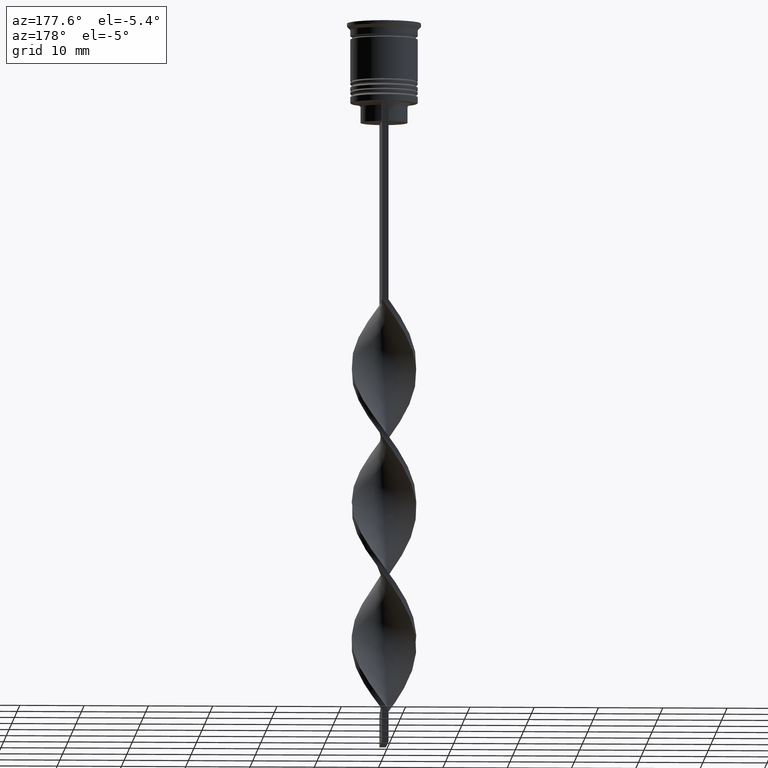
[diagram: clean part render]
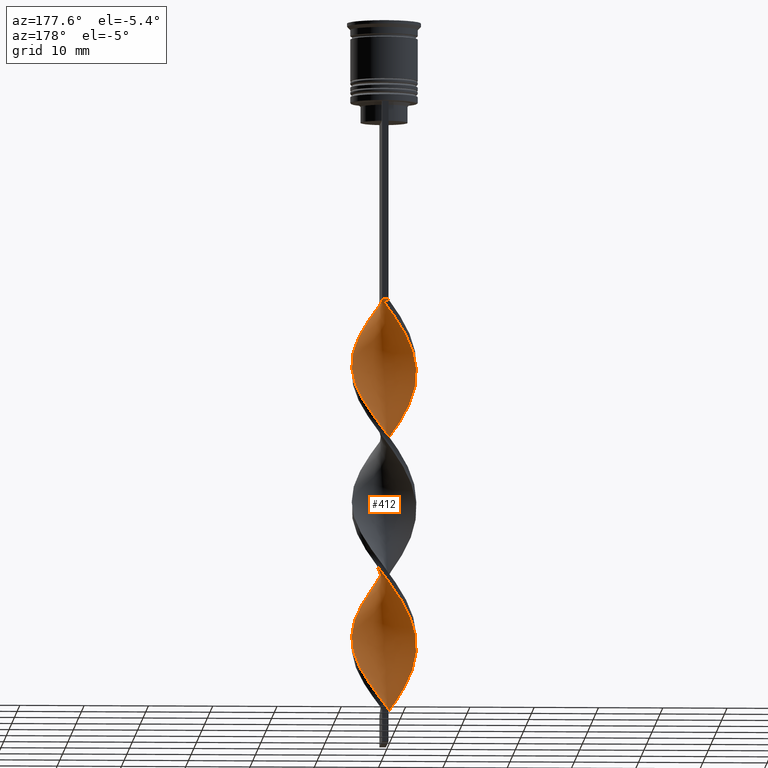
[diagram: same view with one face highlighted and labeled with its STEP entity id]
A machine part, auxiliary view. The second image highlights one B-rep face of the part: STEP entity #412.
In plain terms, the highlighted face is a freeform B-spline surface patch.
Its self-contained STEP definition (entity closure, byte-faithful):
#1 = CARTESIAN_POINT ( 'NONE',  ( 0.7111074127247642984, 4.974366919274038068, -63.19230769230768630 ) ) ;
#6 = CARTESIAN_POINT ( 'NONE',  ( 0.1071099161113016063, -5.060710991611132137, -65.65384615384614619 ) ) ;
#17 = CARTESIAN_POINT ( 'NONE',  ( -2.766343873045448376, -4.194918542244166382, -61.55128205128204399 ) ) ;
#21 = CARTESIAN_POINT ( 'NONE',  ( 4.398951702833859834, -2.428831800708950883, -50.06410256410256210 ) ) ;
#26 = CARTESIAN_POINT ( 'NONE',  ( 4.104038128678487496, 2.962961240565975096, -80.42307692307691980 ) ) ;
#42 = CARTESIAN_POINT ( 'NONE',  ( -4.693865276989236612, -1.894702360851923784, -57.44871794871794890 ) ) ;
#45 = CARTESIAN_POINT ( 'NONE',  ( 4.225728863414809133, 2.786661774892327692, -57.44871794871794890 ) ) ;
#50 = CARTESIAN_POINT ( 'NONE',  ( -0.5000000000000006661, -5.000000000000000888, -64.83333333333332860 ) ) ;
#58 = CARTESIAN_POINT ( 'NONE',  ( -4.225728863414810910, 2.786661774892329024, -50.88461538461537970 ) ) ;
#65 = CARTESIAN_POINT ( 'NONE',  ( -0.1071099161113027859, 5.060710991611132137, -86.98717948717948900 ) ) ;
#72 = CARTESIAN_POINT ( 'NONE',  ( -0.5000000000000002220, -1.666666666666667851, -107.5000000000000000 ) ) ;
#75 = CARTESIAN_POINT ( 'NONE',  ( -0.1071099161113027859, 5.060710991611131249, -44.32051282051282470 ) ) ;
#78 = CARTESIAN_POINT ( 'NONE',  ( -0.4999999999999993339, 4.999999999999999112, -107.5000000000000000 ) ) ;
#80 = LINE ( 'NONE', #3315, #1233 ) ;
#83 = CARTESIAN_POINT ( 'NONE',  ( -2.941357917118425203, 4.074115069975904113, -91.08974358974359120 ) ) ;
#99 = CARTESIAN_POINT ( 'NONE',  ( -4.398951702833861610, -2.428831800708950883, -58.26923076923076650 ) ) ;
#103 = CARTESIAN_POINT ( 'NONE',  ( 4.497778769905805163, 2.240532556555384414, -99.29487179487178139 ) ) ;
#108 = CARTESIAN_POINT ( 'NONE',  ( -5.010902036907448398, 0.7163302668880177082, -73.85897435897436480 ) ) ;
#119 = CARTESIAN_POINT ( 'NONE',  ( 0.1071099161113048537, 5.060710991611129472, -106.6794871794871824 ) ) ;
#124 = CARTESIAN_POINT ( 'NONE',  ( 2.256988544190325907, -4.530813501584092684, -45.96153846153845279 ) ) ;
#137 = CARTESIAN_POINT ( 'NONE',  ( 1.107109916111302717, -4.939289008388868751, -86.98717948717948900 ) ) ;
#142 = CARTESIAN_POINT ( 'NONE',  ( 0.1071099161113048398, 5.060710991611130360, -64.01282051282051100 ) ) ;
#156 = CARTESIAN_POINT ( 'NONE',  ( 3.830886956102703245, 3.251815666602606569, -100.9358974358974308 ) ) ;
#160 = CARTESIAN_POINT ( 'NONE',  ( -1.880887847392241019, -4.659641714287931613, -82.88461538461537259 ) ) ;
#175 = CARTESIAN_POINT ( 'NONE',  ( -3.275699201900569069, -3.859023582904238303, -103.3974358974358694 ) ) ;
#193 = CARTESIAN_POINT ( 'NONE',  ( 3.275699201900567736, -3.859023582904237415, -90.26923076923075939 ) ) ;
#273 = CARTESIAN_POINT ( 'NONE',  ( -4.852383656948341617, 1.305516313869971912, -73.03846153846153300 ) ) ;
#278 = CARTESIAN_POINT ( 'NONE',  ( -5.036723384328414710, 0.5036723384328417596, -96.83333333333332860 ) ) ;
#283 = CARTESIAN_POINT ( 'NONE',  ( 0.5000000000000000000, 5.000000000000000888, -43.50000000000000000 ) ) ;
#289 = CARTESIAN_POINT ( 'NONE',  ( -4.852383656948343393, -1.305516313869969913, -56.62820512820513130 ) ) ;
#295 = CARTESIAN_POINT ( 'NONE',  ( -1.682049230150816532, -4.735051254986481162, -63.19230769230768630 ) ) ;
#304 = CARTESIAN_POINT ( 'NONE',  ( 0.5000000000000000000, 5.000000000000000888, -43.50000000000000000 ) ) ;
#307 = CARTESIAN_POINT ( 'NONE',  ( 5.036723384328413822, 0.5036723384328410935, -54.16666666666666430 ) ) ;
#309 = ORIENTED_EDGE ( 'NONE', *, *, #2556, .F. ) ;
#313 = CARTESIAN_POINT ( 'NONE',  ( 2.446670785446252161, -4.431260581638921892, -68.93589743589743080 ) ) ;
#318 = CARTESIAN_POINT ( 'NONE',  ( 2.446670785446252605, 4.431260581638919227, -103.3974358974358694 ) ) ;
#328 = CARTESIAN_POINT ( 'NONE',  ( -4.903276030362609283, 1.099037838325643168, -53.34615384615383959 ) ) ;
#331 = CARTESIAN_POINT ( 'NONE',  ( 1.880887847392238132, 4.659641714287932501, -61.55128205128204399 ) ) ;
#335 = CARTESIAN_POINT ( 'NONE',  ( -2.446670785446253049, 4.431260581638921003, -47.60256410256408799 ) ) ;
#344 = CARTESIAN_POINT ( 'NONE',  ( 3.689868665289528504, 3.410992411735106700, -81.24358974358973740 ) ) ;
#351 = CARTESIAN_POINT ( 'NONE',  ( 4.769828676396805633, -1.694403338218443800, -73.85897435897436480 ) ) ;
#363 = CARTESIAN_POINT ( 'NONE',  ( -4.769828676396803857, 1.694403338218444022, -52.52564102564102910 ) ) ;
#370 = CARTESIAN_POINT ( 'NONE',  ( -0.4999999999999993339, 4.999999999999999112, -107.5000000000000000 ) ) ;
#371 = CARTESIAN_POINT ( 'NONE',  ( -4.852383656948343393, -1.305516313869969913, -99.29487179487178139 ) ) ;
#385 = CARTESIAN_POINT ( 'NONE',  ( -4.769828676396803857, 1.694403338218444022, -95.19230769230769340 ) ) ;
#389 = CARTESIAN_POINT ( 'NONE',  ( 4.225728863414809133, 2.786661774892327692, -100.1153846153846132 ) ) ;
#394 = CARTESIAN_POINT ( 'NONE',  ( 4.852383656948341617, -1.305516313869971246, -51.70512820512820440 ) ) ;
#405 = CARTESIAN_POINT ( 'NONE',  ( -5.036723384328413822, -0.5036723384328405384, -75.50000000000000000 ) ) ;
#410 = CARTESIAN_POINT ( 'NONE',  ( -4.398951702833861610, -2.428831800708950883, -100.9358974358974308 ) ) ;
#412 = ADVANCED_FACE ( 'NONE', ( #2166 ), #1568, .T. ) ;
#421 = CARTESIAN_POINT ( 'NONE',  ( 4.903276030362607507, 1.099037838325641392, -97.65384615384614619 ) ) ;
#425 = CARTESIAN_POINT ( 'NONE',  ( -4.104038128678483055, 2.962961240565979093, -70.57692307692306599 ) ) ;
#443 = CARTESIAN_POINT ( 'NONE',  ( -2.256988544190328572, -4.530813501584093572, -105.0384615384615330 ) ) ;
#458 = VERTEX_POINT ( 'NONE', #283 ) ;
#459 = CARTESIAN_POINT ( 'NONE',  ( 2.256988544190325907, -4.530813501584092684, -88.62820512820513841 ) ) ;
#515 = ORIENTED_EDGE ( 'NONE', *, *, #1076, .T. ) ;
#541 = CARTESIAN_POINT ( 'NONE',  ( -4.398951702833859834, 2.428831800708950883, -71.39743589743588359 ) ) ;
#547 = CARTESIAN_POINT ( 'NONE',  ( 2.256988544190329016, 4.530813501584093572, -83.70512820512820440 ) ) ;
#552 = CARTESIAN_POINT ( 'NONE',  ( 2.941357917118426091, 4.074115069975901449, -102.5769230769230660 ) ) ;
#557 = CARTESIAN_POINT ( 'NONE',  ( -1.682049230150816532, -4.735051254986481162, -63.19230769230768630 ) ) ;
#564 = CARTESIAN_POINT ( 'NONE',  ( -1.315104909338222772, 4.888022846936949328, -45.96153846153845279 ) ) ;
#573 = CARTESIAN_POINT ( 'NONE',  ( -3.436045048790599132, 3.716969558312887667, -91.91025641025643722 ) ) ;
#576 = CARTESIAN_POINT ( 'NONE',  ( 1.107109916111302717, -4.939289008388868751, -44.32051282051282470 ) ) ;
#580 = CARTESIAN_POINT ( 'NONE',  ( -3.830886956102704133, 3.251815666602608346, -50.06410256410256210 ) ) ;
#584 = CARTESIAN_POINT ( 'NONE',  ( 5.023812710617931110, -0.1063289642275889874, -96.01282051282051100 ) ) ;
#592 = CARTESIAN_POINT ( 'NONE',  ( -2.256988544190328572, -4.530813501584093572, -62.37179487179486870 ) ) ;
#601 = CARTESIAN_POINT ( 'NONE',  ( -4.104038128678486608, -2.962961240565977317, -59.08974358974359120 ) ) ;
#616 = CARTESIAN_POINT ( 'NONE',  ( -1.315104909338222772, 4.888022846936949328, -45.96153846153845990 ) ) ;
#620 = CARTESIAN_POINT ( 'NONE',  ( 3.689868665289525396, -3.410992411735107588, -48.42307692307691269 ) ) ;
#624 = CARTESIAN_POINT ( 'NONE',  ( -5.036723384328414710, 0.5036723384328417596, -54.16666666666665719 ) ) ;
#628 = CARTESIAN_POINT ( 'NONE',  ( 0.7111074127247642984, 4.974366919274038068, -105.8589743589743506 ) ) ;
#630 = CARTESIAN_POINT ( 'NONE',  ( -0.4999999999999993339, 4.999999999999999112, -107.5000000000000000 ) ) ;
#632 = CARTESIAN_POINT ( 'NONE',  ( 2.446670785446252161, -4.431260581638921003, -68.93589743589743080 ) ) ;
#639 = CARTESIAN_POINT ( 'NONE',  ( 1.682049230150814534, -4.735051254986480274, -45.14102564102563520 ) ) ;
#658 = EDGE_CURVE ( 'NONE', #2536, #3394, #1551, .T. ) ;
#659 = CARTESIAN_POINT ( 'NONE',  ( 4.769828676396803857, 1.694403338218442912, -55.80769230769230660 ) ) ;
#677 = CARTESIAN_POINT ( 'NONE',  ( 5.036723384328413822, 0.5036723384328410935, -96.83333333333332860 ) ) ;
#681 = CARTESIAN_POINT ( 'NONE',  ( -4.104038128678486608, -2.962961240565977317, -101.7564102564102484 ) ) ;
#691 = CARTESIAN_POINT ( 'NONE',  ( -4.769828676396803857, -1.694403338218441135, -77.14102564102563520 ) ) ;
#694 = CARTESIAN_POINT ( 'NONE',  ( 4.104038128678483943, -2.962961240565977761, -49.24358974358973740 ) ) ;
#707 = CARTESIAN_POINT ( 'NONE',  ( 1.880887847392238132, 4.659641714287932501, -61.55128205128204399 ) ) ;
#728 = CARTESIAN_POINT ( 'NONE',  ( 4.398951702833859834, -2.428831800708950883, -92.73076923076922640 ) ) ;
#786 = CARTESIAN_POINT ( 'NONE',  ( 0.5000000000000000000, 5.000000000000000888, -43.50000000000000000 ) ) ;
#810 = CARTESIAN_POINT ( 'NONE',  ( 0.5000000000000000000, -4.999999999999999112, -43.50000000000000000 ) ) ;
#827 = CARTESIAN_POINT ( 'NONE',  ( -5.010902036907449286, -0.7163302668880179302, -55.80769230769230660 ) ) ;
#838 = CARTESIAN_POINT ( 'NONE',  ( -4.769828676396804745, 1.694403338218444244, -52.52564102564103621 ) ) ;
#850 = CARTESIAN_POINT ( 'NONE',  ( -0.7111074127247628551, 4.974366919274039844, -45.14102564102563520 ) ) ;
#853 = CARTESIAN_POINT ( 'NONE',  ( 5.010902036907448398, -0.7163302668880181523, -52.52564102564102910 ) ) ;
#856 = CARTESIAN_POINT ( 'NONE',  ( -4.903276030362609283, 1.099037838325643168, -53.34615384615383959 ) ) ;
#867 = CARTESIAN_POINT ( 'NONE',  ( 0.1071099161113016063, -5.060710991611131249, -65.65384615384614619 ) ) ;
#870 = CARTESIAN_POINT ( 'NONE',  ( 2.941357917118426091, 4.074115069975901449, -59.91025641025640880 ) ) ;
#874 = CARTESIAN_POINT ( 'NONE',  ( 5.023812710617932886, 0.1063289642275847546, -76.32051282051281760 ) ) ;
#878 = CARTESIAN_POINT ( 'NONE',  ( 3.436045048790599132, 3.716969558312884558, -101.7564102564102484 ) ) ;
#884 = CARTESIAN_POINT ( 'NONE',  ( 4.398951702833861610, 2.428831800708950439, -79.60256410256410220 ) ) ;
#894 = CARTESIAN_POINT ( 'NONE',  ( 1.107109916111305381, 4.939289008388870528, -85.34615384615383959 ) ) ;
#907 = CARTESIAN_POINT ( 'NONE',  ( 1.682049230150819419, 4.735051254986480274, -84.52564102564103621 ) ) ;
#914 = CARTESIAN_POINT ( 'NONE',  ( -4.497778769905806939, 2.240532556555386634, -94.37179487179486159 ) ) ;
#927 = CARTESIAN_POINT ( 'NONE',  ( -5.036723384328415598, 0.5036723384328417596, -96.83333333333332860 ) ) ;
#930 = CARTESIAN_POINT ( 'NONE',  ( 2.446670785446252605, 4.431260581638918339, -103.3974358974358836 ) ) ;
#936 = CARTESIAN_POINT ( 'NONE',  ( -2.256988544190325019, 4.530813501584093572, -67.29487179487178139 ) ) ;
#947 = CARTESIAN_POINT ( 'NONE',  ( 1.682049230150814534, -4.735051254986480274, -87.80769230769230660 ) ) ;
#951 = CARTESIAN_POINT ( 'NONE',  ( -1.107109916111304937, -4.939289008388870528, -106.6794871794871682 ) ) ;
#963 = CARTESIAN_POINT ( 'NONE',  ( 2.941357917118426091, 4.074115069975901449, -102.5769230769230660 ) ) ;
#966 = CARTESIAN_POINT ( 'NONE',  ( -4.497778769905805163, -2.240532556555384858, -77.96153846153845279 ) ) ;
#979 = CARTESIAN_POINT ( 'NONE',  ( 4.497778769905805163, 2.240532556555384414, -56.62820512820513130 ) ) ;
#992 = CARTESIAN_POINT ( 'NONE',  ( 4.852383656948341617, -1.305516313869971246, -94.37179487179486159 ) ) ;
#1075 = CARTESIAN_POINT ( 'NONE',  ( 5.023812710617931110, -0.1063289642275889874, -53.34615384615383959 ) ) ;
#1076 = EDGE_CURVE ( 'NONE', #3278, #3394, #1315, .T. ) ;
#1090 = CARTESIAN_POINT ( 'NONE',  ( 0.1071099161113048537, 5.060710991611129472, -64.01282051282051100 ) ) ;
#1095 = CARTESIAN_POINT ( 'NONE',  ( 5.010902036907451063, 0.7163302668880160429, -77.14102564102563520 ) ) ;
#1103 = CARTESIAN_POINT ( 'NONE',  ( 5.023812710617932886, 0.1063289642275847546, -76.32051282051281760 ) ) ;
#1107 = CARTESIAN_POINT ( 'NONE',  ( 4.693865276989234836, -1.894702360851923340, -50.88461538461537970 ) ) ;
#1113 = CARTESIAN_POINT ( 'NONE',  ( 5.036723384328414710, -0.5036723384328424258, -75.49999999999998579 ) ) ;
#1119 = CARTESIAN_POINT ( 'NONE',  ( 4.497778769905805163, 2.240532556555384414, -99.29487179487178139 ) ) ;
#1126 = CARTESIAN_POINT ( 'NONE',  ( -1.107109916111305159, -4.939289008388870528, -64.01282051282051100 ) ) ;
#1133 = CARTESIAN_POINT ( 'NONE',  ( 4.497778769905806939, -2.240532556555387078, -73.03846153846153300 ) ) ;
#1142 = CARTESIAN_POINT ( 'NONE',  ( 4.903276030362609283, -1.099037838325644945, -74.67948717948718240 ) ) ;
#1145 = CARTESIAN_POINT ( 'NONE',  ( 2.256988544190326351, -4.530813501584092684, -45.96153846153845990 ) ) ;
#1149 = CARTESIAN_POINT ( 'NONE',  ( -0.7111074127247628551, 4.974366919274039844, -87.80769230769230660 ) ) ;
#1159 = CARTESIAN_POINT ( 'NONE',  ( -3.689868665289528060, -3.410992411735107144, -59.91025641025640880 ) ) ;
#1162 = CARTESIAN_POINT ( 'NONE',  ( -4.903276030362609283, -1.099037838325638727, -76.32051282051281760 ) ) ;
#1168 = CARTESIAN_POINT ( 'NONE',  ( -3.830886956102704133, 3.251815666602608346, -92.73076923076922640 ) ) ;
#1184 = CARTESIAN_POINT ( 'NONE',  ( 4.104038128678484831, -2.962961240565978205, -91.91025641025643722 ) ) ;
#1188 = CARTESIAN_POINT ( 'NONE',  ( -5.023812710617931110, 0.1063289642275907221, -74.67948717948718240 ) ) ;
#1197 = CARTESIAN_POINT ( 'NONE',  ( -5.010902036907449286, -0.7163302668880179302, -98.47435897435896379 ) ) ;
#1207 = CARTESIAN_POINT ( 'NONE',  ( 4.903276030362607507, 1.099037838325641392, -54.98717948717948190 ) ) ;
#1217 = CARTESIAN_POINT ( 'NONE',  ( -2.941357917118426535, -4.074115069975901449, -81.24358974358973740 ) ) ;
#1221 = CARTESIAN_POINT ( 'NONE',  ( -3.436045048790600909, -3.716969558312882782, -80.42307692307691980 ) ) ;
#1233 = VECTOR ( 'NONE', #2793, 1000.000000000000000 ) ;
#1239 = CARTESIAN_POINT ( 'NONE',  ( 0.5000000000000000000, -4.999999999999999112, -86.16666666666667140 ) ) ;
#1242 = CARTESIAN_POINT ( 'NONE',  ( -1.315104909338224770, -4.888022846936946664, -83.70512820512820440 ) ) ;
#1251 = CARTESIAN_POINT ( 'NONE',  ( -2.766343873045448376, -4.194918542244166382, -104.2179487179487012 ) ) ;
#1256 = CARTESIAN_POINT ( 'NONE',  ( 4.225728863414809133, 2.786661774892327248, -57.44871794871794890 ) ) ;
#1271 = CARTESIAN_POINT ( 'NONE',  ( 4.693865276989234836, -1.894702360851923117, -93.55128205128204399 ) ) ;
#1299 = CARTESIAN_POINT ( 'NONE',  ( -0.1071099161113027859, 5.060710991611132137, -44.32051282051282470 ) ) ;
#1315 =( BOUNDED_CURVE ( )  B_SPLINE_CURVE ( 2, ( #810, #576, #3280, #1145, #1431, #1370, #620, #1947, #21, #1107, #2458, #853, #1075, #307, #1645, #2440, #1392, #45, #2774, #3296, #870, #3032, #331, #1700, #1, #1090, #1413, #2500, #2236, #2517, #2161, #3242, #1890, #2977, #541, #2720, #273, #1354, #3351, #405, #1162, #691, #2257, #3334, #3127, #2580, #1217, #1987, #2311, #2278, #1776, #2876, #1239, #137, #947, #2562, #1489, #2331, #1449, #1184, #2061, #2540, #3142, #3391, #2860, #677, #421, #1506, #103, #389, #156, #3408, #963, #930, #2004, #3111, #2047, #119, #78 ),
 .UNSPECIFIED., .F., .T. ) 
 B_SPLINE_CURVE_WITH_KNOTS ( ( 3, 2, 2, 2, 2, 2, 2, 2, 2, 2, 2, 2, 2, 2, 2, 2, 2, 2, 2, 2, 2, 2, 2, 2, 2, 2, 2, 2, 2, 2, 2, 2, 2, 2, 2, 2, 2, 2, 2, 3 ),
 ( 0.000000000000000000, 0.01923076923076923184, 0.03846153846153846367, 0.05769230769230768857, 0.07692307692307692735, 0.09615384615384615918, 0.1153846153846153771, 0.1346153846153846090, 0.1538461538461538547, 0.1730769230769230449, 0.1923076923076923184, 0.2115384615384615363, 0.2307692307692307543, 0.2500000000000000000, 0.2692307692307692180, 0.2884615384615384359, 0.3076923076923077094, 0.3269230769230769273, 0.3461538461538460898, 0.3653846153846153633, 0.3846153846153846367, 0.4038461538461539102, 0.4230769230769230727, 0.4423076923076922906, 0.4615384615384615086, 0.4807692307692307820, 0.5000000000000000000, 0.5192307692307692735, 0.5384615384615384359, 0.5576923076923077094, 0.5769230769230768718, 0.5961538461538461453, 0.6153846153846154188, 0.6346153846153845812, 0.6538461538461538547, 0.6730769230769230171, 0.6923076923076921796, 0.7115384615384615641, 0.7307692307692307265, 0.7500000000000000000 ),
 .UNSPECIFIED. ) 
 CURVE ( )  GEOMETRIC_REPRESENTATION_ITEM ( )  RATIONAL_B_SPLINE_CURVE ( ( 1.000000000000000000, 0.9927088740980539727, 1.000000000000000000, 0.9927088740980539727, 1.000000000000000000, 0.9927088740980539727, 1.000000000000000000, 0.9927088740980539727, 1.000000000000000000, 0.9927088740980539727, 1.000000000000000000, 0.9927088740980539727, 1.000000000000000000, 0.9927088740980539727, 1.000000000000000000, 0.9927088740980539727, 1.000000000000000000, 0.9927088740980539727, 1.000000000000000000, 0.9927088740980539727, 1.000000000000000000, 0.9927088740980539727, 1.000000000000000000, 0.9927088740980539727, 1.000000000000000000, 0.9927088740980539727, 1.000000000000000000, 0.9927088740980539727, 1.000000000000000000, 0.9927088740980539727, 1.000000000000000000, 0.9927088740980539727, 1.000000000000000000, 0.9927088740980539727, 1.000000000000000000, 0.9927088740980539727, 1.000000000000000000, 0.9927088740980539727, 1.000000000000000000, 0.9927088740980539727, 1.000000000000000000, 0.9927088740980539727, 1.000000000000000000, 0.9927088740980539727, 1.000000000000000000, 0.9927088740980539727, 1.000000000000000000, 0.9927088740980539727, 1.000000000000000000, 0.9927088740980539727, 1.000000000000000000, 0.9927088740980539727, 1.000000000000000000, 0.9927088740980539727, 1.000000000000000000, 0.9927088740980539727, 1.000000000000000000, 0.9927088740980539727, 1.000000000000000000, 0.9927088740980539727, 1.000000000000000000, 0.9927088740980539727, 1.000000000000000000, 0.9927088740980539727, 1.000000000000000000, 0.9927088740980539727, 1.000000000000000000, 0.9927088740980539727, 1.000000000000000000, 0.9927088740980539727, 1.000000000000000000, 0.9927088740980539727, 1.000000000000000000, 0.9927088740980539727, 1.000000000000000000, 0.9927088740980539727, 1.000000000000000000, 0.9927088740980539727, 1.000000000000000000 ) ) 
 REPRESENTATION_ITEM ( '' )  );
#1354 = CARTESIAN_POINT ( 'NONE',  ( -5.010902036907447510, 0.7163302668880177082, -73.85897435897436480 ) ) ;
#1358 = CARTESIAN_POINT ( 'NONE',  ( -2.941357917118425203, 4.074115069975904113, -48.42307692307691269 ) ) ;
#1362 = CARTESIAN_POINT ( 'NONE',  ( 4.225728863414809133, 2.786661774892327248, -100.1153846153846274 ) ) ;
#1366 = CARTESIAN_POINT ( 'NONE',  ( -2.446670785446253049, 4.431260581638920115, -90.26923076923077360 ) ) ;
#1370 = CARTESIAN_POINT ( 'NONE',  ( 3.275699201900567292, -3.859023582904237415, -47.60256410256409509 ) ) ;
#1375 = CARTESIAN_POINT ( 'NONE',  ( 0.7111074127247614118, -4.974366919274040733, -66.47435897435896379 ) ) ;
#1380 = CARTESIAN_POINT ( 'NONE',  ( 4.769828676396803857, 1.694403338218442912, -98.47435897435896379 ) ) ;
#1387 = CARTESIAN_POINT ( 'NONE',  ( -4.497778769905806939, 2.240532556555386634, -51.70512820512820440 ) ) ;
#1392 = CARTESIAN_POINT ( 'NONE',  ( 4.497778769905805163, 2.240532556555384414, -56.62820512820513130 ) ) ;
#1399 = CARTESIAN_POINT ( 'NONE',  ( -2.766343873045448376, -4.194918542244166382, -61.55128205128204399 ) ) ;
#1410 = CARTESIAN_POINT ( 'NONE',  ( -4.104038128678487496, -2.962961240565977761, -59.08974358974358410 ) ) ;
#1413 = CARTESIAN_POINT ( 'NONE',  ( -0.4999999999999993339, 4.999999999999999112, -64.83333333333332860 ) ) ;
#1418 = CARTESIAN_POINT ( 'NONE',  ( 4.225728863414809133, -2.786661774892330801, -72.21794871794871540 ) ) ;
#1427 =( BOUNDED_CURVE ( )  B_SPLINE_CURVE ( 2, ( #304, #75, #850, #616, #1428, #3310, #2476, #2997, #2788, #58, #1387, #363, #328, #1962, #1446, #827, #289, #42, #99, #1410, #1159, #2197, #17, #592, #557, #1126, #1679, #867, #2252, #2535, #2216, #632, #3051, #3293, #1944, #2769, #2497, #2175, #1142, #3012, #1103, #1697, #2233, #3254, #884, #1908, #344, #3331, #1928, #2514, #907, #1983, #3068, #1642, #1715, #2805, #2732, #1366, #3277, #573, #1660, #2874, #3106, #385, #2559, #927, #2275, #1197, #1469, #2045, #3087, #1487, #3125, #3386, #1251, #2895, #2578, #3153, #2059 ),
 .UNSPECIFIED., .F., .T. ) 
 B_SPLINE_CURVE_WITH_KNOTS ( ( 3, 2, 2, 2, 2, 2, 2, 2, 2, 2, 2, 2, 2, 2, 2, 2, 2, 2, 2, 2, 2, 2, 2, 2, 2, 2, 2, 2, 2, 2, 2, 2, 2, 2, 2, 2, 2, 2, 2, 3 ),
 ( 0.000000000000000000, 0.01923076923076923184, 0.03846153846153846367, 0.05769230769230768857, 0.07692307692307692735, 0.09615384615384615918, 0.1153846153846153771, 0.1346153846153846090, 0.1538461538461538547, 0.1730769230769230449, 0.1923076923076923184, 0.2115384615384615363, 0.2307692307692307543, 0.2500000000000000000, 0.2692307692307692180, 0.2884615384615384359, 0.3076923076923077094, 0.3269230769230769273, 0.3461538461538460898, 0.3653846153846153633, 0.3846153846153846367, 0.4038461538461539102, 0.4230769230769230727, 0.4423076923076922906, 0.4615384615384615086, 0.4807692307692307820, 0.5000000000000000000, 0.5192307692307692735, 0.5384615384615384359, 0.5576923076923077094, 0.5769230769230768718, 0.5961538461538461453, 0.6153846153846154188, 0.6346153846153845812, 0.6538461538461538547, 0.6730769230769230171, 0.6923076923076921796, 0.7115384615384615641, 0.7307692307692307265, 0.7500000000000000000 ),
 .UNSPECIFIED. ) 
 CURVE ( )  GEOMETRIC_REPRESENTATION_ITEM ( )  RATIONAL_B_SPLINE_CURVE ( ( 1.000000000000000000, 0.9927088740980539727, 1.000000000000000000, 0.9927088740980539727, 1.000000000000000000, 0.9927088740980539727, 1.000000000000000000, 0.9927088740980539727, 1.000000000000000000, 0.9927088740980539727, 1.000000000000000000, 0.9927088740980539727, 1.000000000000000000, 0.9927088740980539727, 1.000000000000000000, 0.9927088740980539727, 1.000000000000000000, 0.9927088740980539727, 1.000000000000000000, 0.9927088740980539727, 1.000000000000000000, 0.9927088740980539727, 1.000000000000000000, 0.9927088740980539727, 1.000000000000000000, 0.9927088740980539727, 1.000000000000000000, 0.9927088740980539727, 1.000000000000000000, 0.9927088740980539727, 1.000000000000000000, 0.9927088740980539727, 1.000000000000000000, 0.9927088740980539727, 1.000000000000000000, 0.9927088740980539727, 1.000000000000000000, 0.9927088740980539727, 1.000000000000000000, 0.9927088740980539727, 1.000000000000000000, 0.9927088740980539727, 1.000000000000000000, 0.9927088740980539727, 1.000000000000000000, 0.9927088740980539727, 1.000000000000000000, 0.9927088740980539727, 1.000000000000000000, 0.9927088740980539727, 1.000000000000000000, 0.9927088740980539727, 1.000000000000000000, 0.9927088740980539727, 1.000000000000000000, 0.9927088740980539727, 1.000000000000000000, 0.9927088740980539727, 1.000000000000000000, 0.9927088740980539727, 1.000000000000000000, 0.9927088740980539727, 1.000000000000000000, 0.9927088740980539727, 1.000000000000000000, 0.9927088740980539727, 1.000000000000000000, 0.9927088740980539727, 1.000000000000000000, 0.9927088740980539727, 1.000000000000000000, 0.9927088740980539727, 1.000000000000000000, 0.9927088740980539727, 1.000000000000000000, 0.9927088740980539727, 1.000000000000000000, 0.9927088740980539727, 1.000000000000000000 ) ) 
 REPRESENTATION_ITEM ( '' )  );
#1428 = CARTESIAN_POINT ( 'NONE',  ( -1.880887847392238132, 4.659641714287934278, -46.78205128205127750 ) ) ;
#1431 = CARTESIAN_POINT ( 'NONE',  ( 2.766343873045447044, -4.194918542244165494, -46.78205128205127750 ) ) ;
#1435 = CARTESIAN_POINT ( 'NONE',  ( 4.903276030362609283, -1.099037838325644945, -74.67948717948718240 ) ) ;
#1446 = CARTESIAN_POINT ( 'NONE',  ( -5.023812710617932886, -0.1063289642275874608, -54.98717948717948190 ) ) ;
#1449 = CARTESIAN_POINT ( 'NONE',  ( 3.689868665289525396, -3.410992411735107588, -91.08974358974359120 ) ) ;
#1457 = CARTESIAN_POINT ( 'NONE',  ( 5.023812710617931110, -0.1063289642275889874, -53.34615384615383959 ) ) ;
#1469 = CARTESIAN_POINT ( 'NONE',  ( -4.852383656948343393, -1.305516313869969913, -99.29487179487178139 ) ) ;
#1479 = CARTESIAN_POINT ( 'NONE',  ( -5.036723384328412934, -0.5036723384328404274, -75.49999999999998579 ) ) ;
#1487 = CARTESIAN_POINT ( 'NONE',  ( -4.104038128678487496, -2.962961240565977761, -101.7564102564102484 ) ) ;
#1489 = CARTESIAN_POINT ( 'NONE',  ( 2.766343873045447044, -4.194918542244165494, -89.44871794871794179 ) ) ;
#1493 = CARTESIAN_POINT ( 'NONE',  ( 3.275699201900567736, -3.859023582904237415, -47.60256410256408799 ) ) ;
#1506 = CARTESIAN_POINT ( 'NONE',  ( 4.769828676396803857, 1.694403338218442689, -98.47435897435896379 ) ) ;
#1510 = CARTESIAN_POINT ( 'NONE',  ( 3.830886956102703245, 3.251815666602606569, -58.26923076923076650 ) ) ;
#1527 = CARTESIAN_POINT ( 'NONE',  ( -4.225728863414810910, -2.786661774892325028, -78.78205128205127039 ) ) ;
#1542 = CARTESIAN_POINT ( 'NONE',  ( 4.104038128678483943, -2.962961240565977761, -91.91025641025643722 ) ) ;
#1551 = B_SPLINE_CURVE_WITH_KNOTS ( 'NONE', 3,
 ( #1695, #72, #2468, #630 ),
 .UNSPECIFIED., .F., .F.,
 ( 4, 4 ),
 ( 0.000000000000000000, 1.000000000000000000 ),
 .UNSPECIFIED. ) ;
#1568 =( BOUNDED_SURFACE ( )  B_SPLINE_SURFACE ( 1, 2, ( 
 ( #786, #1299, #1935, #564, #3020, #335, #1358, #3284, #580, #3262, #3060, #838, #856, #624, #2796, #2183, #3037, #1650, #1951, #601, #1668, #2984, #1399, #2739, #295, #1688, #50, #6, #1375, #2754, #2446, #313, #2462, #2779, #1917, #1418, #1133, #351, #1435, #1113, #874, #1095, #1972, #3004, #2240, #26, #3300, #2222, #2207, #547, #2485, #894, #2504, #65, #1149, #3318, #1705, #3338, #83, #2522, #1168, #2263, #914, #2724, #1632, #278, #2282, #2851, #371, #2300, #410, #681, #2064, #175, #3372, #443, #2863, #951, #2033 ),
 ( #1792, #2334, #639, #124, #1779, #1493, #2348, #694, #1991, #2585, #394, #2009, #1457, #3355, #1207, #659, #979, #1256, #1510, #2619, #1764, #3144, #707, #3116, #2316, #142, #1743, #3395, #3077, #936, #2813, #2546, #2835, #425, #1722, #3094, #2883, #108, #1188, #1479, #2602, #2567, #966, #1527, #3423, #1221, #2050, #3131, #160, #1242, #3411, #1810, #2635, #2077, #2900, #459, #3162, #193, #2362, #1542, #728, #1271, #992, #2188, #584, #2760, #2509, #1380, #1119, #1362, #3064, #878, #552, #318, #3024, #2244, #628, #2269, #2800 ) ),
 .UNSPECIFIED., .F., .F., .F. ) 
 B_SPLINE_SURFACE_WITH_KNOTS ( ( 2, 2 ),
 ( 3, 2, 2, 2, 2, 2, 2, 2, 2, 2, 2, 2, 2, 2, 2, 2, 2, 2, 2, 2, 2, 2, 2, 2, 2, 2, 2, 2, 2, 2, 2, 2, 2, 2, 2, 2, 2, 2, 2, 3 ),
 ( 0.000000000000000000, 1.000000000000000000 ),
 ( 0.000000000000000000, 0.01923076923076923184, 0.03846153846153846367, 0.05769230769230769551, 0.07692307692307692735, 0.09615384615384615918, 0.1153846153846153910, 0.1346153846153846090, 0.1538461538461538547, 0.1730769230769230727, 0.1923076923076923184, 0.2115384615384615363, 0.2307692307692307820, 0.2500000000000000000, 0.2692307692307692180, 0.2884615384615384359, 0.3076923076923077094, 0.3269230769230769273, 0.3461538461538461453, 0.3653846153846153633, 0.3846153846153846367, 0.4038461538461538547, 0.4230769230769230727, 0.4423076923076922906, 0.4615384615384615641, 0.4807692307692307820, 0.5000000000000000000, 0.5192307692307692735, 0.5384615384615384359, 0.5576923076923077094, 0.5769230769230768718, 0.5961538461538461453, 0.6153846153846154188, 0.6346153846153845812, 0.6538461538461538547, 0.6730769230769231282, 0.6923076923076922906, 0.7115384615384615641, 0.7307692307692307265, 0.7500000000000000000 ),
 .UNSPECIFIED. ) 
 GEOMETRIC_REPRESENTATION_ITEM ( )  RATIONAL_B_SPLINE_SURFACE ( (
 ( 1.000000000000000000, 0.9927088740980539727, 1.000000000000000000, 0.9927088740980539727, 1.000000000000000000, 0.9927088740980539727, 1.000000000000000000, 0.9927088740980539727, 1.000000000000000000, 0.9927088740980539727, 1.000000000000000000, 0.9927088740980539727, 1.000000000000000000, 0.9927088740980539727, 1.000000000000000000, 0.9927088740980539727, 1.000000000000000000, 0.9927088740980539727, 1.000000000000000000, 0.9927088740980539727, 1.000000000000000000, 0.9927088740980539727, 1.000000000000000000, 0.9927088740980539727, 1.000000000000000000, 0.9927088740980539727, 1.000000000000000000, 0.9927088740980539727, 1.000000000000000000, 0.9927088740980539727, 1.000000000000000000, 0.9927088740980539727, 1.000000000000000000, 0.9927088740980539727, 1.000000000000000000, 0.9927088740980539727, 1.000000000000000000, 0.9927088740980539727, 1.000000000000000000, 0.9927088740980539727, 1.000000000000000000, 0.9927088740980539727, 1.000000000000000000, 0.9927088740980539727, 1.000000000000000000, 0.9927088740980539727, 1.000000000000000000, 0.9927088740980539727, 1.000000000000000000, 0.9927088740980539727, 1.000000000000000000, 0.9927088740980539727, 1.000000000000000000, 0.9927088740980539727, 1.000000000000000000, 0.9927088740980539727, 1.000000000000000000, 0.9927088740980539727, 1.000000000000000000, 0.9927088740980539727, 1.000000000000000000, 0.9927088740980539727, 1.000000000000000000, 0.9927088740980539727, 1.000000000000000000, 0.9927088740980539727, 1.000000000000000000, 0.9927088740980539727, 1.000000000000000000, 0.9927088740980539727, 1.000000000000000000, 0.9927088740980539727, 1.000000000000000000, 0.9927088740980539727, 1.000000000000000000, 0.9927088740980539727, 1.000000000000000000, 0.9927088740980539727, 1.000000000000000000),
 ( 1.000000000000000000, 0.9927088740980539727, 1.000000000000000000, 0.9927088740980539727, 1.000000000000000000, 0.9927088740980539727, 1.000000000000000000, 0.9927088740980539727, 1.000000000000000000, 0.9927088740980539727, 1.000000000000000000, 0.9927088740980539727, 1.000000000000000000, 0.9927088740980539727, 1.000000000000000000, 0.9927088740980539727, 1.000000000000000000, 0.9927088740980539727, 1.000000000000000000, 0.9927088740980539727, 1.000000000000000000, 0.9927088740980539727, 1.000000000000000000, 0.9927088740980539727, 1.000000000000000000, 0.9927088740980539727, 1.000000000000000000, 0.9927088740980539727, 1.000000000000000000, 0.9927088740980539727, 1.000000000000000000, 0.9927088740980539727, 1.000000000000000000, 0.9927088740980539727, 1.000000000000000000, 0.9927088740980539727, 1.000000000000000000, 0.9927088740980539727, 1.000000000000000000, 0.9927088740980539727, 1.000000000000000000, 0.9927088740980539727, 1.000000000000000000, 0.9927088740980539727, 1.000000000000000000, 0.9927088740980539727, 1.000000000000000000, 0.9927088740980539727, 1.000000000000000000, 0.9927088740980539727, 1.000000000000000000, 0.9927088740980539727, 1.000000000000000000, 0.9927088740980539727, 1.000000000000000000, 0.9927088740980539727, 1.000000000000000000, 0.9927088740980539727, 1.000000000000000000, 0.9927088740980539727, 1.000000000000000000, 0.9927088740980539727, 1.000000000000000000, 0.9927088740980539727, 1.000000000000000000, 0.9927088740980539727, 1.000000000000000000, 0.9927088740980539727, 1.000000000000000000, 0.9927088740980539727, 1.000000000000000000, 0.9927088740980539727, 1.000000000000000000, 0.9927088740980539727, 1.000000000000000000, 0.9927088740980539727, 1.000000000000000000, 0.9927088740980539727, 1.000000000000000000) ) ) 
 REPRESENTATION_ITEM ( '' )  SURFACE ( )  );
#1632 = CARTESIAN_POINT ( 'NONE',  ( -4.903276030362609283, 1.099037838325643168, -96.01282051282051100 ) ) ;
#1642 = CARTESIAN_POINT ( 'NONE',  ( -0.1071099161113027859, 5.060710991611131249, -86.98717948717948900 ) ) ;
#1645 = CARTESIAN_POINT ( 'NONE',  ( 4.903276030362607507, 1.099037838325641392, -54.98717948717948190 ) ) ;
#1650 = CARTESIAN_POINT ( 'NONE',  ( -4.693865276989236612, -1.894702360851923562, -57.44871794871794890 ) ) ;
#1660 = CARTESIAN_POINT ( 'NONE',  ( -3.830886956102704133, 3.251815666602608346, -92.73076923076922640 ) ) ;
#1668 = CARTESIAN_POINT ( 'NONE',  ( -3.689868665289528060, -3.410992411735107144, -59.91025641025640880 ) ) ;
#1679 = CARTESIAN_POINT ( 'NONE',  ( -0.5000000000000006661, -5.000000000000000888, -64.83333333333332860 ) ) ;
#1688 = CARTESIAN_POINT ( 'NONE',  ( -1.107109916111304937, -4.939289008388870528, -64.01282051282051100 ) ) ;
#1695 = CARTESIAN_POINT ( 'NONE',  ( -0.5000000000000006661, -5.000000000000000888, -107.5000000000000000 ) ) ;
#1697 = CARTESIAN_POINT ( 'NONE',  ( 5.010902036907450174, 0.7163302668880160429, -77.14102564102563520 ) ) ;
#1700 = CARTESIAN_POINT ( 'NONE',  ( 1.315104909338224104, 4.888022846936946664, -62.37179487179486870 ) ) ;
#1705 = CARTESIAN_POINT ( 'NONE',  ( -1.880887847392238132, 4.659641714287934278, -89.44871794871794179 ) ) ;
#1715 = CARTESIAN_POINT ( 'NONE',  ( -0.7111074127247628551, 4.974366919274039844, -87.80769230769230660 ) ) ;
#1722 = CARTESIAN_POINT ( 'NONE',  ( -4.398951702833859834, 2.428831800708950883, -71.39743589743588359 ) ) ;
#1743 = CARTESIAN_POINT ( 'NONE',  ( -0.4999999999999993339, 4.999999999999999112, -64.83333333333332860 ) ) ;
#1764 = CARTESIAN_POINT ( 'NONE',  ( 2.941357917118426091, 4.074115069975901449, -59.91025641025640880 ) ) ;
#1776 = CARTESIAN_POINT ( 'NONE',  ( -0.7111074127247671850, -4.974366919274038068, -84.52564102564103621 ) ) ;
#1779 = CARTESIAN_POINT ( 'NONE',  ( 2.766343873045447044, -4.194918542244165494, -46.78205128205127750 ) ) ;
#1792 = CARTESIAN_POINT ( 'NONE',  ( 0.5000000000000000000, -4.999999999999999112, -43.50000000000000000 ) ) ;
#1810 = CARTESIAN_POINT ( 'NONE',  ( -0.1071099161113053949, -5.060710991611130360, -85.34615384615383959 ) ) ;
#1815 = EDGE_LOOP ( 'NONE', ( #2737, #515, #2859, #309 ) ) ;
#1823 = CARTESIAN_POINT ( 'NONE',  ( -0.5000000000000006661, -5.000000000000000888, -107.5000000000000000 ) ) ;
#1890 = CARTESIAN_POINT ( 'NONE',  ( -3.689868665289524952, 3.410992411735108476, -69.75641025641024839 ) ) ;
#1908 = CARTESIAN_POINT ( 'NONE',  ( 4.104038128678488384, 2.962961240565975096, -80.42307692307691980 ) ) ;
#1917 = CARTESIAN_POINT ( 'NONE',  ( 3.830886956102704133, -3.251815666602608346, -71.39743589743588359 ) ) ;
#1928 = CARTESIAN_POINT ( 'NONE',  ( 2.766343873045451041, 4.194918542244163717, -82.88461538461537259 ) ) ;
#1935 = CARTESIAN_POINT ( 'NONE',  ( -0.7111074127247628551, 4.974366919274039844, -45.14102564102563520 ) ) ;
#1944 = CARTESIAN_POINT ( 'NONE',  ( 3.830886956102704133, -3.251815666602608346, -71.39743589743588359 ) ) ;
#1947 = CARTESIAN_POINT ( 'NONE',  ( 4.104038128678484831, -2.962961240565978205, -49.24358974358974450 ) ) ;
#1951 = CARTESIAN_POINT ( 'NONE',  ( -4.398951702833861610, -2.428831800708950883, -58.26923076923076650 ) ) ;
#1962 = CARTESIAN_POINT ( 'NONE',  ( -5.036723384328415598, 0.5036723384328417596, -54.16666666666666430 ) ) ;
#1972 = CARTESIAN_POINT ( 'NONE',  ( 4.852383656948343393, 1.305516313869970801, -77.96153846153845279 ) ) ;
#1983 = CARTESIAN_POINT ( 'NONE',  ( 1.107109916111305603, 4.939289008388870528, -85.34615384615385381 ) ) ;
#1987 = CARTESIAN_POINT ( 'NONE',  ( -2.446670785446253493, -4.431260581638918339, -82.06410256410255499 ) ) ;
#1991 = CARTESIAN_POINT ( 'NONE',  ( 4.398951702833859834, -2.428831800708950883, -50.06410256410256210 ) ) ;
#2004 = CARTESIAN_POINT ( 'NONE',  ( 1.880887847392238132, 4.659641714287932501, -104.2179487179487012 ) ) ;
#2009 = CARTESIAN_POINT ( 'NONE',  ( 5.010902036907449286, -0.7163302668880181523, -52.52564102564103621 ) ) ;
#2033 = CARTESIAN_POINT ( 'NONE',  ( -0.5000000000000006661, -5.000000000000000888, -107.5000000000000000 ) ) ;
#2042 = EDGE_CURVE ( 'NONE', #3278, #458, #80, .T. ) ;
#2045 = CARTESIAN_POINT ( 'NONE',  ( -4.693865276989236612, -1.894702360851923784, -100.1153846153846132 ) ) ;
#2047 = CARTESIAN_POINT ( 'NONE',  ( 0.7111074127247642984, 4.974366919274038068, -105.8589743589743506 ) ) ;
#2050 = CARTESIAN_POINT ( 'NONE',  ( -2.941357917118426535, -4.074115069975901449, -81.24358974358973740 ) ) ;
#2059 = CARTESIAN_POINT ( 'NONE',  ( -0.5000000000000006661, -5.000000000000000888, -107.5000000000000000 ) ) ;
#2061 = CARTESIAN_POINT ( 'NONE',  ( 4.398951702833859834, -2.428831800708950883, -92.73076923076922640 ) ) ;
#2064 = CARTESIAN_POINT ( 'NONE',  ( -3.689868665289528060, -3.410992411735107144, -102.5769230769230660 ) ) ;
#2077 = CARTESIAN_POINT ( 'NONE',  ( 1.107109916111302717, -4.939289008388868751, -86.98717948717948900 ) ) ;
#2161 = CARTESIAN_POINT ( 'NONE',  ( -2.766343873045446600, 4.194918542244165494, -68.11538461538459899 ) ) ;
#2166 = FACE_OUTER_BOUND ( 'NONE', #1815, .T. ) ;
#2175 = CARTESIAN_POINT ( 'NONE',  ( 4.769828676396804745, -1.694403338218443578, -73.85897435897436480 ) ) ;
#2183 = CARTESIAN_POINT ( 'NONE',  ( -5.010902036907450174, -0.7163302668880179302, -55.80769230769230660 ) ) ;
#2188 = CARTESIAN_POINT ( 'NONE',  ( 5.010902036907449286, -0.7163302668880181523, -95.19230769230769340 ) ) ;
#2197 = CARTESIAN_POINT ( 'NONE',  ( -3.275699201900569069, -3.859023582904238303, -60.73076923076922640 ) ) ;
#2207 = CARTESIAN_POINT ( 'NONE',  ( 2.766343873045451041, 4.194918542244163717, -82.88461538461537259 ) ) ;
#2216 = CARTESIAN_POINT ( 'NONE',  ( 1.880887847392237688, -4.659641714287934278, -68.11538461538459899 ) ) ;
#2222 = CARTESIAN_POINT ( 'NONE',  ( 3.275699201900569513, 3.859023582904238303, -82.06410256410255499 ) ) ;
#2233 = CARTESIAN_POINT ( 'NONE',  ( 4.852383656948343393, 1.305516313869970801, -77.96153846153845279 ) ) ;
#2236 = CARTESIAN_POINT ( 'NONE',  ( -1.682049230150812980, 4.735051254986481162, -66.47435897435896379 ) ) ;
#2240 = CARTESIAN_POINT ( 'NONE',  ( 4.398951702833861610, 2.428831800708950439, -79.60256410256410220 ) ) ;
#2244 = CARTESIAN_POINT ( 'NONE',  ( 1.315104909338224326, 4.888022846936946664, -105.0384615384615330 ) ) ;
#2252 = CARTESIAN_POINT ( 'NONE',  ( 0.7111074127247614118, -4.974366919274040733, -66.47435897435896379 ) ) ;
#2257 = CARTESIAN_POINT ( 'NONE',  ( -4.497778769905805163, -2.240532556555384858, -77.96153846153845279 ) ) ;
#2263 = CARTESIAN_POINT ( 'NONE',  ( -4.225728863414810910, 2.786661774892328580, -93.55128205128204399 ) ) ;
#2269 = CARTESIAN_POINT ( 'NONE',  ( 0.1071099161113048398, 5.060710991611130360, -106.6794871794871682 ) ) ;
#2275 = CARTESIAN_POINT ( 'NONE',  ( -5.023812710617932886, -0.1063289642275874608, -97.65384615384614619 ) ) ;
#2278 = CARTESIAN_POINT ( 'NONE',  ( -1.315104909338224548, -4.888022846936946664, -83.70512820512820440 ) ) ;
#2282 = CARTESIAN_POINT ( 'NONE',  ( -5.023812710617932886, -0.1063289642275874608, -97.65384615384614619 ) ) ;
#2300 = CARTESIAN_POINT ( 'NONE',  ( -4.693865276989236612, -1.894702360851923562, -100.1153846153846274 ) ) ;
#2311 = CARTESIAN_POINT ( 'NONE',  ( -1.880887847392241019, -4.659641714287931613, -82.88461538461537259 ) ) ;
#2316 = CARTESIAN_POINT ( 'NONE',  ( 0.7111074127247642984, 4.974366919274038068, -63.19230769230768630 ) ) ;
#2331 = CARTESIAN_POINT ( 'NONE',  ( 3.275699201900567292, -3.859023582904237415, -90.26923076923077360 ) ) ;
#2334 = CARTESIAN_POINT ( 'NONE',  ( 1.107109916111302717, -4.939289008388868751, -44.32051282051282470 ) ) ;
#2348 = CARTESIAN_POINT ( 'NONE',  ( 3.689868665289525396, -3.410992411735107588, -48.42307692307691269 ) ) ;
#2362 = CARTESIAN_POINT ( 'NONE',  ( 3.689868665289525396, -3.410992411735107588, -91.08974358974359120 ) ) ;
#2440 = CARTESIAN_POINT ( 'NONE',  ( 4.769828676396803857, 1.694403338218442689, -55.80769230769230660 ) ) ;
#2446 = CARTESIAN_POINT ( 'NONE',  ( 1.880887847392237688, -4.659641714287934278, -68.11538461538459899 ) ) ;
#2458 = CARTESIAN_POINT ( 'NONE',  ( 4.852383656948341617, -1.305516313869971246, -51.70512820512820440 ) ) ;
#2462 = CARTESIAN_POINT ( 'NONE',  ( 2.941357917118424758, -4.074115069975905001, -69.75641025641024839 ) ) ;
#2468 = CARTESIAN_POINT ( 'NONE',  ( -0.4999999999999997780, 1.666666666666666075, -107.5000000000000000 ) ) ;
#2476 = CARTESIAN_POINT ( 'NONE',  ( -2.941357917118425203, 4.074115069975904113, -48.42307692307691269 ) ) ;
#2485 = CARTESIAN_POINT ( 'NONE',  ( 1.682049230150819419, 4.735051254986480274, -84.52564102564103621 ) ) ;
#2497 = CARTESIAN_POINT ( 'NONE',  ( 4.497778769905806939, -2.240532556555387078, -73.03846153846153300 ) ) ;
#2500 = CARTESIAN_POINT ( 'NONE',  ( -1.107109916111301606, 4.939289008388868751, -65.65384615384614619 ) ) ;
#2504 = CARTESIAN_POINT ( 'NONE',  ( 0.5000000000000000000, 5.000000000000000888, -86.16666666666667140 ) ) ;
#2509 = CARTESIAN_POINT ( 'NONE',  ( 4.903276030362607507, 1.099037838325641392, -97.65384615384614619 ) ) ;
#2514 = CARTESIAN_POINT ( 'NONE',  ( 2.256988544190329016, 4.530813501584093572, -83.70512820512820440 ) ) ;
#2517 = CARTESIAN_POINT ( 'NONE',  ( -2.256988544190325019, 4.530813501584093572, -67.29487179487178139 ) ) ;
#2522 = CARTESIAN_POINT ( 'NONE',  ( -3.436045048790599132, 3.716969558312887667, -91.91025641025643722 ) ) ;
#2535 = CARTESIAN_POINT ( 'NONE',  ( 1.315104909338221217, -4.888022846936949328, -67.29487179487178139 ) ) ;
#2536 = VERTEX_POINT ( 'NONE', #1823 ) ;
#2540 = CARTESIAN_POINT ( 'NONE',  ( 4.693865276989234836, -1.894702360851923340, -93.55128205128204399 ) ) ;
#2546 = CARTESIAN_POINT ( 'NONE',  ( -3.275699201900567736, 3.859023582904237415, -68.93589743589743080 ) ) ;
#2556 = EDGE_CURVE ( 'NONE', #458, #2536, #1427, .T. ) ;
#2559 = CARTESIAN_POINT ( 'NONE',  ( -4.903276030362609283, 1.099037838325643168, -96.01282051282051100 ) ) ;
#2562 = CARTESIAN_POINT ( 'NONE',  ( 2.256988544190326351, -4.530813501584092684, -88.62820512820512420 ) ) ;
#2567 = CARTESIAN_POINT ( 'NONE',  ( -4.769828676396804745, -1.694403338218441357, -77.14102564102563520 ) ) ;
#2578 = CARTESIAN_POINT ( 'NONE',  ( -1.682049230150816532, -4.735051254986481162, -105.8589743589743506 ) ) ;
#2580 = CARTESIAN_POINT ( 'NONE',  ( -3.436045048790600909, -3.716969558312882782, -80.42307692307691980 ) ) ;
#2585 = CARTESIAN_POINT ( 'NONE',  ( 4.693865276989234836, -1.894702360851923117, -50.88461538461538680 ) ) ;
#2602 = CARTESIAN_POINT ( 'NONE',  ( -4.903276030362609283, -1.099037838325638727, -76.32051282051281760 ) ) ;
#2619 = CARTESIAN_POINT ( 'NONE',  ( 3.436045048790599132, 3.716969558312884558, -59.08974358974359120 ) ) ;
#2635 = CARTESIAN_POINT ( 'NONE',  ( 0.5000000000000000000, -4.999999999999999112, -86.16666666666667140 ) ) ;
#2720 = CARTESIAN_POINT ( 'NONE',  ( -4.693865276989233060, 1.894702360851926004, -72.21794871794871540 ) ) ;
#2724 = CARTESIAN_POINT ( 'NONE',  ( -4.769828676396804745, 1.694403338218444244, -95.19230769230769340 ) ) ;
#2732 = CARTESIAN_POINT ( 'NONE',  ( -1.880887847392238132, 4.659641714287934278, -89.44871794871794179 ) ) ;
#2737 = ORIENTED_EDGE ( 'NONE', *, *, #2042, .F. ) ;
#2739 = CARTESIAN_POINT ( 'NONE',  ( -2.256988544190328572, -4.530813501584093572, -62.37179487179486870 ) ) ;
#2754 = CARTESIAN_POINT ( 'NONE',  ( 1.315104909338221217, -4.888022846936949328, -67.29487179487178139 ) ) ;
#2760 = CARTESIAN_POINT ( 'NONE',  ( 5.036723384328412934, 0.5036723384328410935, -96.83333333333332860 ) ) ;
#2769 = CARTESIAN_POINT ( 'NONE',  ( 4.225728863414809133, -2.786661774892331245, -72.21794871794871540 ) ) ;
#2774 = CARTESIAN_POINT ( 'NONE',  ( 3.830886956102703245, 3.251815666602606569, -58.26923076923076650 ) ) ;
#2779 = CARTESIAN_POINT ( 'NONE',  ( 3.436045048790597800, -3.716969558312888555, -70.57692307692306599 ) ) ;
#2788 = CARTESIAN_POINT ( 'NONE',  ( -3.830886956102704133, 3.251815666602608346, -50.06410256410256210 ) ) ;
#2793 = DIRECTION ( 'NONE',  ( 0.000000000000000000, 1.000000000000000000, 0.000000000000000000 ) ) ;
#2796 = CARTESIAN_POINT ( 'NONE',  ( -5.023812710617932886, -0.1063289642275874608, -54.98717948717948190 ) ) ;
#2800 = CARTESIAN_POINT ( 'NONE',  ( -0.4999999999999993339, 4.999999999999999112, -107.5000000000000000 ) ) ;
#2805 = CARTESIAN_POINT ( 'NONE',  ( -1.315104909338222772, 4.888022846936949328, -88.62820512820512420 ) ) ;
#2813 = CARTESIAN_POINT ( 'NONE',  ( -2.766343873045446600, 4.194918542244165494, -68.11538461538459899 ) ) ;
#2835 = CARTESIAN_POINT ( 'NONE',  ( -3.689868665289524952, 3.410992411735108476, -69.75641025641024839 ) ) ;
#2851 = CARTESIAN_POINT ( 'NONE',  ( -5.010902036907450174, -0.7163302668880179302, -98.47435897435896379 ) ) ;
#2859 = ORIENTED_EDGE ( 'NONE', *, *, #658, .F. ) ;
#2860 = CARTESIAN_POINT ( 'NONE',  ( 5.023812710617931110, -0.1063289642275889874, -96.01282051282051100 ) ) ;
#2863 = CARTESIAN_POINT ( 'NONE',  ( -1.682049230150816532, -4.735051254986481162, -105.8589743589743506 ) ) ;
#2874 = CARTESIAN_POINT ( 'NONE',  ( -4.225728863414810910, 2.786661774892329024, -93.55128205128204399 ) ) ;
#2876 = CARTESIAN_POINT ( 'NONE',  ( -0.1071099161113053949, -5.060710991611129472, -85.34615384615385381 ) ) ;
#2883 = CARTESIAN_POINT ( 'NONE',  ( -4.852383656948341617, 1.305516313869971912, -73.03846153846153300 ) ) ;
#2895 = CARTESIAN_POINT ( 'NONE',  ( -2.256988544190328572, -4.530813501584093572, -105.0384615384615188 ) ) ;
#2900 = CARTESIAN_POINT ( 'NONE',  ( 1.682049230150814534, -4.735051254986480274, -87.80769230769230660 ) ) ;
#2977 = CARTESIAN_POINT ( 'NONE',  ( -4.104038128678483943, 2.962961240565979537, -70.57692307692306599 ) ) ;
#2984 = CARTESIAN_POINT ( 'NONE',  ( -3.275699201900569069, -3.859023582904238303, -60.73076923076922640 ) ) ;
#2997 = CARTESIAN_POINT ( 'NONE',  ( -3.436045048790599132, 3.716969558312887667, -49.24358974358974450 ) ) ;
#3004 = CARTESIAN_POINT ( 'NONE',  ( 4.693865276989236612, 1.894702360851920897, -78.78205128205127039 ) ) ;
#3012 = CARTESIAN_POINT ( 'NONE',  ( 5.036723384328415598, -0.5036723384328424258, -75.50000000000000000 ) ) ;
#3020 = CARTESIAN_POINT ( 'NONE',  ( -1.880887847392238132, 4.659641714287934278, -46.78205128205127750 ) ) ;
#3024 = CARTESIAN_POINT ( 'NONE',  ( 1.880887847392238132, 4.659641714287932501, -104.2179487179487012 ) ) ;
#3032 = CARTESIAN_POINT ( 'NONE',  ( 2.446670785446252605, 4.431260581638918339, -60.73076923076922640 ) ) ;
#3037 = CARTESIAN_POINT ( 'NONE',  ( -4.852383656948343393, -1.305516313869969913, -56.62820512820513130 ) ) ;
#3051 = CARTESIAN_POINT ( 'NONE',  ( 2.941357917118424758, -4.074115069975905001, -69.75641025641024839 ) ) ;
#3060 = CARTESIAN_POINT ( 'NONE',  ( -4.497778769905806939, 2.240532556555386634, -51.70512820512820440 ) ) ;
#3064 = CARTESIAN_POINT ( 'NONE',  ( 3.830886956102703245, 3.251815666602606569, -100.9358974358974308 ) ) ;
#3068 = CARTESIAN_POINT ( 'NONE',  ( 0.5000000000000000000, 5.000000000000000888, -86.16666666666667140 ) ) ;
#3077 = CARTESIAN_POINT ( 'NONE',  ( -1.682049230150812980, 4.735051254986481162, -66.47435897435896379 ) ) ;
#3087 = CARTESIAN_POINT ( 'NONE',  ( -4.398951702833861610, -2.428831800708950883, -100.9358974358974308 ) ) ;
#3094 = CARTESIAN_POINT ( 'NONE',  ( -4.693865276989233060, 1.894702360851926226, -72.21794871794871540 ) ) ;
#3106 = CARTESIAN_POINT ( 'NONE',  ( -4.497778769905806939, 2.240532556555386634, -94.37179487179486159 ) ) ;
#3111 = CARTESIAN_POINT ( 'NONE',  ( 1.315104909338224104, 4.888022846936946664, -105.0384615384615188 ) ) ;
#3116 = CARTESIAN_POINT ( 'NONE',  ( 1.315104909338224326, 4.888022846936946664, -62.37179487179486870 ) ) ;
#3125 = CARTESIAN_POINT ( 'NONE',  ( -3.689868665289528060, -3.410992411735107144, -102.5769230769230660 ) ) ;
#3127 = CARTESIAN_POINT ( 'NONE',  ( -3.830886956102704577, -3.251815666602606125, -79.60256410256410220 ) ) ;
#3131 = CARTESIAN_POINT ( 'NONE',  ( -2.446670785446253493, -4.431260581638919227, -82.06410256410255499 ) ) ;
#3142 = CARTESIAN_POINT ( 'NONE',  ( 4.852383656948341617, -1.305516313869971246, -94.37179487179486159 ) ) ;
#3144 = CARTESIAN_POINT ( 'NONE',  ( 2.446670785446252605, 4.431260581638919227, -60.73076923076922640 ) ) ;
#3153 = CARTESIAN_POINT ( 'NONE',  ( -1.107109916111305159, -4.939289008388870528, -106.6794871794871824 ) ) ;
#3162 = CARTESIAN_POINT ( 'NONE',  ( 2.766343873045447044, -4.194918542244165494, -89.44871794871794179 ) ) ;
#3242 = CARTESIAN_POINT ( 'NONE',  ( -3.275699201900567292, 3.859023582904237415, -68.93589743589743080 ) ) ;
#3254 = CARTESIAN_POINT ( 'NONE',  ( 4.693865276989236612, 1.894702360851921119, -78.78205128205127039 ) ) ;
#3262 = CARTESIAN_POINT ( 'NONE',  ( -4.225728863414810910, 2.786661774892328580, -50.88461538461538680 ) ) ;
#3277 = CARTESIAN_POINT ( 'NONE',  ( -2.941357917118425203, 4.074115069975904113, -91.08974358974359120 ) ) ;
#3278 = VERTEX_POINT ( 'NONE', #3283 ) ;
#3280 = CARTESIAN_POINT ( 'NONE',  ( 1.682049230150814534, -4.735051254986480274, -45.14102564102563520 ) ) ;
#3283 = CARTESIAN_POINT ( 'NONE',  ( 0.5000000000000000000, -4.999999999999999112, -43.50000000000000000 ) ) ;
#3284 = CARTESIAN_POINT ( 'NONE',  ( -3.436045048790599132, 3.716969558312887667, -49.24358974358973740 ) ) ;
#3293 = CARTESIAN_POINT ( 'NONE',  ( 3.436045048790597800, -3.716969558312888555, -70.57692307692306599 ) ) ;
#3296 = CARTESIAN_POINT ( 'NONE',  ( 3.436045048790599132, 3.716969558312884558, -59.08974358974358410 ) ) ;
#3300 = CARTESIAN_POINT ( 'NONE',  ( 3.689868665289528504, 3.410992411735106700, -81.24358974358973740 ) ) ;
#3310 = CARTESIAN_POINT ( 'NONE',  ( -2.446670785446253049, 4.431260581638920115, -47.60256410256409509 ) ) ;
#3315 = CARTESIAN_POINT ( 'NONE',  ( 0.5000000000000000000, -4.999999999999999112, -43.50000000000000000 ) ) ;
#3318 = CARTESIAN_POINT ( 'NONE',  ( -1.315104909338222772, 4.888022846936949328, -88.62820512820513841 ) ) ;
#3331 = CARTESIAN_POINT ( 'NONE',  ( 3.275699201900569513, 3.859023582904238303, -82.06410256410255499 ) ) ;
#3334 = CARTESIAN_POINT ( 'NONE',  ( -4.225728863414810910, -2.786661774892325028, -78.78205128205127039 ) ) ;
#3338 = CARTESIAN_POINT ( 'NONE',  ( -2.446670785446253049, 4.431260581638921003, -90.26923076923075939 ) ) ;
#3351 = CARTESIAN_POINT ( 'NONE',  ( -5.023812710617931110, 0.1063289642275907221, -74.67948717948718240 ) ) ;
#3355 = CARTESIAN_POINT ( 'NONE',  ( 5.036723384328412934, 0.5036723384328410935, -54.16666666666665719 ) ) ;
#3372 = CARTESIAN_POINT ( 'NONE',  ( -2.766343873045448376, -4.194918542244166382, -104.2179487179487012 ) ) ;
#3386 = CARTESIAN_POINT ( 'NONE',  ( -3.275699201900569069, -3.859023582904238303, -103.3974358974358836 ) ) ;
#3391 = CARTESIAN_POINT ( 'NONE',  ( 5.010902036907448398, -0.7163302668880181523, -95.19230769230769340 ) ) ;
#3394 = VERTEX_POINT ( 'NONE', #370 ) ;
#3395 = CARTESIAN_POINT ( 'NONE',  ( -1.107109916111301828, 4.939289008388868751, -65.65384615384614619 ) ) ;
#3408 = CARTESIAN_POINT ( 'NONE',  ( 3.436045048790599132, 3.716969558312884558, -101.7564102564102484 ) ) ;
#3411 = CARTESIAN_POINT ( 'NONE',  ( -0.7111074127247671850, -4.974366919274038068, -84.52564102564103621 ) ) ;
#3423 = CARTESIAN_POINT ( 'NONE',  ( -3.830886956102704577, -3.251815666602606125, -79.60256410256410220 ) ) ;